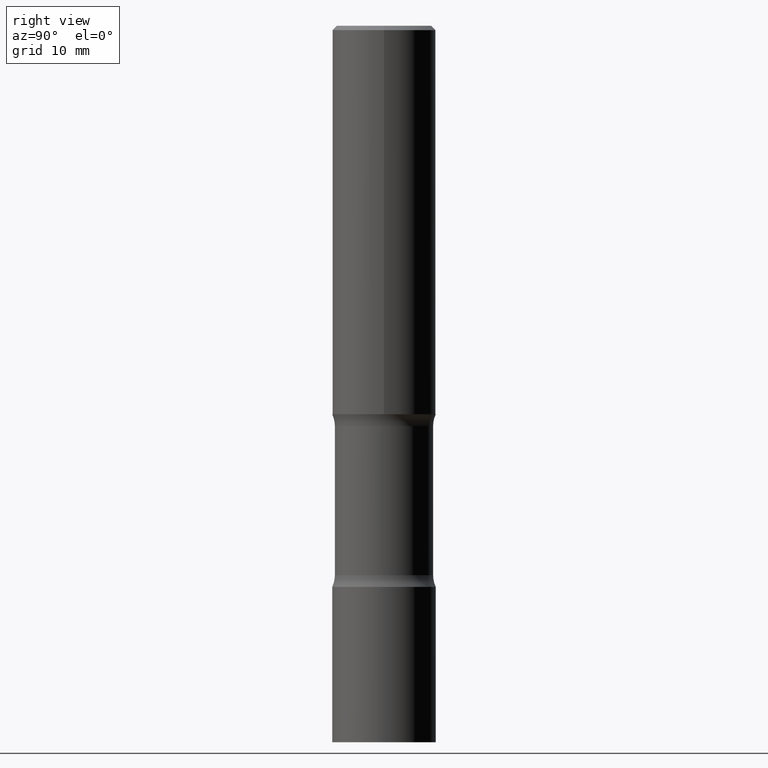
[diagram: clean part render]
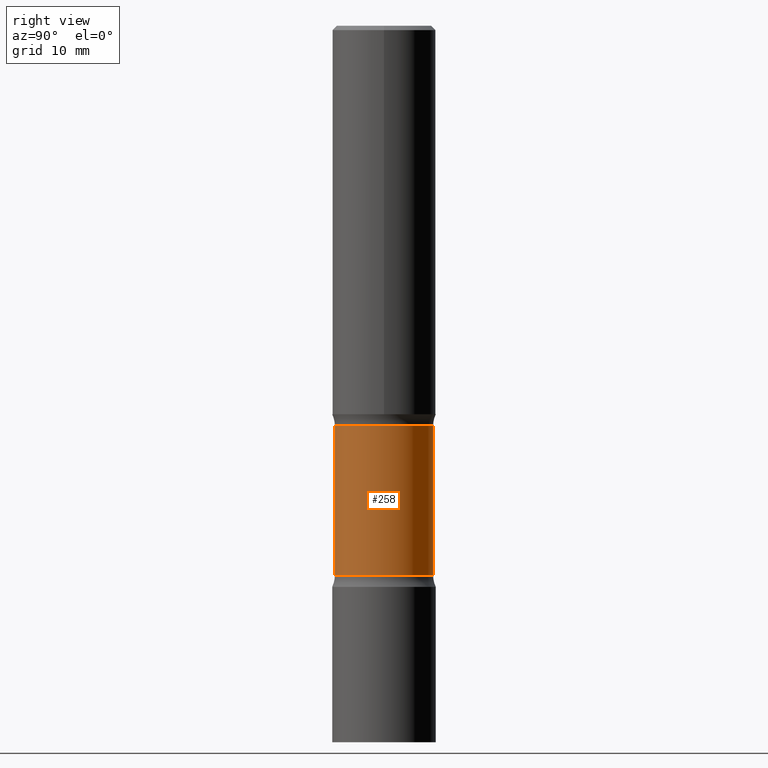
[diagram: same view with one face highlighted and labeled with its STEP entity id]
A machine part, right view. The second image highlights one B-rep face of the part: STEP entity #258.
In plain terms, the highlighted cylindrical surface (partial cylindrical patch) has radius 5.6896 mm, axis along (0, -0, -1).
Its self-contained STEP definition (entity closure, byte-faithful):
#3 = ORIENTED_EDGE ( 'NONE', *, *, #405, .F. ) ;
#9 = AXIS2_PLACEMENT_3D ( 'NONE', #267, #463, #108 ) ;
#27 = CARTESIAN_POINT ( 'NONE',  ( 1.564183639801804262E-15, 0.2239999999999887081, -3.267700000000000937 ) ) ;
#34 = CARTESIAN_POINT ( 'NONE',  ( 1.564183639801786316E-15, 0.2239999999999914837, -2.505137582675859065 ) ) ;
#35 = ORIENTED_EDGE ( 'NONE', *, *, #294, .F. ) ;
#45 = DIRECTION ( 'NONE',  ( 2.458502273273184055E-29, -3.472816672154183992E-15, -1.000000000000000000 ) ) ;
#63 = VECTOR ( 'NONE', #259, 39.37007874015748143 ) ;
#92 = VECTOR ( 'NONE', #149, 39.37007874015748143 ) ;
#108 = DIRECTION ( 'NONE',  ( 6.982962677686265922E-15, 1.000000000000000000, -2.439149994343090877E-15 ) ) ;
#113 = DIRECTION ( 'NONE',  ( 6.982962677686266711E-15, 1.000000000000000000, -3.658724991514638486E-15 ) ) ;
#149 = DIRECTION ( 'NONE',  ( 2.458502273273184335E-29, -3.472816672154183992E-15, -1.000000000000000000 ) ) ;
#153 = ORIENTED_EDGE ( 'NONE', *, *, #187, .T. ) ;
#166 = VERTEX_POINT ( 'NONE', #337 ) ;
#179 = CARTESIAN_POINT ( 'NONE',  ( -1.578600589287185035E-15, -0.2240000000000063607, -1.825462417324140496 ) ) ;
#187 = EDGE_CURVE ( 'NONE', #239, #166, #454, .T. ) ;
#191 = LINE ( 'NONE', #27, #92 ) ;
#223 = CARTESIAN_POINT ( 'NONE',  ( -1.536751551500743867E-15, -0.2240000000000115232, -3.267699999999999605 ) ) ;
#230 = FACE_OUTER_BOUND ( 'NONE', #481, .T. ) ;
#239 = VERTEX_POINT ( 'NONE', #179 ) ;
#240 = CARTESIAN_POINT ( 'NONE',  ( 6.119348514940003175E-29, -8.756504124880539089E-15, -2.505137582675858621 ) ) ;
#258 = ADVANCED_FACE ( 'NONE', ( #230 ), #503, .T. ) ;
#259 = DIRECTION ( 'NONE',  ( 2.458502273273184335E-29, -3.472816672154183992E-15, -1.000000000000000000 ) ) ;
#267 = CARTESIAN_POINT ( 'NONE',  ( 7.994109951444100629E-29, -1.140474360132201428E-14, -3.267700000000000049 ) ) ;
#268 = EDGE_CURVE ( 'NONE', #312, #239, #317, .T. ) ;
#272 = DIRECTION ( 'NONE',  ( 6.982962677686265922E-15, 1.000000000000000000, -2.439149994343089694E-15 ) ) ;
#294 = EDGE_CURVE ( 'NONE', #312, #408, #191, .T. ) ;
#309 = CARTESIAN_POINT ( 'NONE',  ( 1.564183639801767975E-15, 0.2239999999999935931, -1.825462417324142050 ) ) ;
#311 = DIRECTION ( 'NONE',  ( 2.458502273273184055E-29, -3.472816672154183992E-15, -1.000000000000000000 ) ) ;
#312 = VERTEX_POINT ( 'NONE', #309 ) ;
#317 = CIRCLE ( 'NONE', #410, 0.2239999999999999769 ) ;
#337 = CARTESIAN_POINT ( 'NONE',  ( -1.578600589287168075E-15, -0.2240000000000089697, -2.505137582675858177 ) ) ;
#355 = ORIENTED_EDGE ( 'NONE', *, *, #268, .T. ) ;
#375 = CIRCLE ( 'NONE', #385, 0.2240000000000002267 ) ;
#385 = AXIS2_PLACEMENT_3D ( 'NONE', #240, #45, #272 ) ;
#405 = EDGE_CURVE ( 'NONE', #408, #166, #375, .T. ) ;
#408 = VERTEX_POINT ( 'NONE', #34 ) ;
#410 = AXIS2_PLACEMENT_3D ( 'NONE', #466, #311, #113 ) ;
#454 = LINE ( 'NONE', #223, #63 ) ;
#463 = DIRECTION ( 'NONE',  ( 2.458502273273184055E-29, -3.472816672154183992E-15, -1.000000000000000000 ) ) ;
#466 = CARTESIAN_POINT ( 'NONE',  ( 4.448365575835479275E-29, -6.396116878997944759E-15, -1.825462417324141384 ) ) ;
#481 = EDGE_LOOP ( 'NONE', ( #355, #153, #3, #35 ) ) ;
#503 = CYLINDRICAL_SURFACE ( 'NONE', #9, 0.2240000000000001157 ) ;